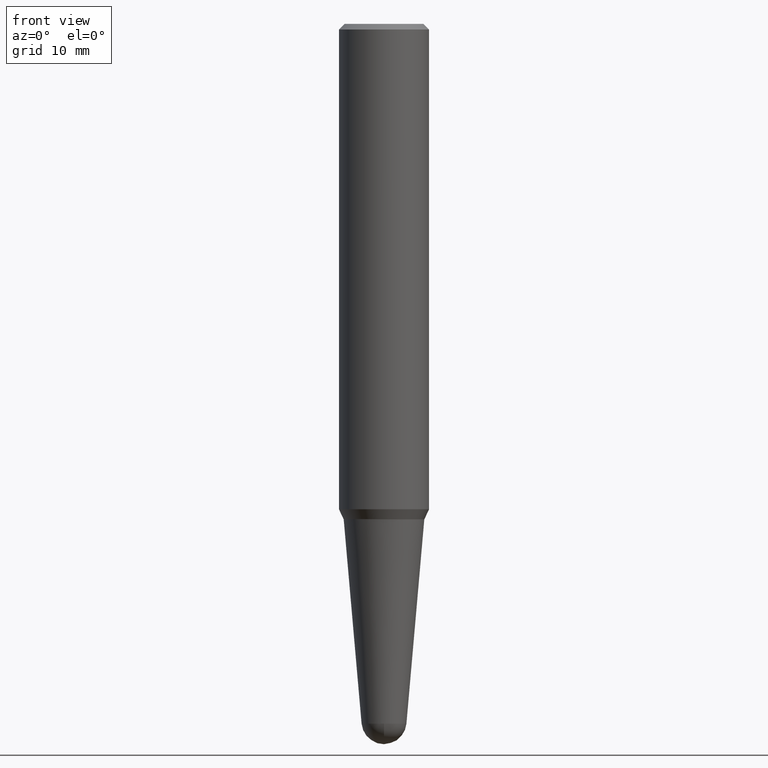
[diagram: clean part render]
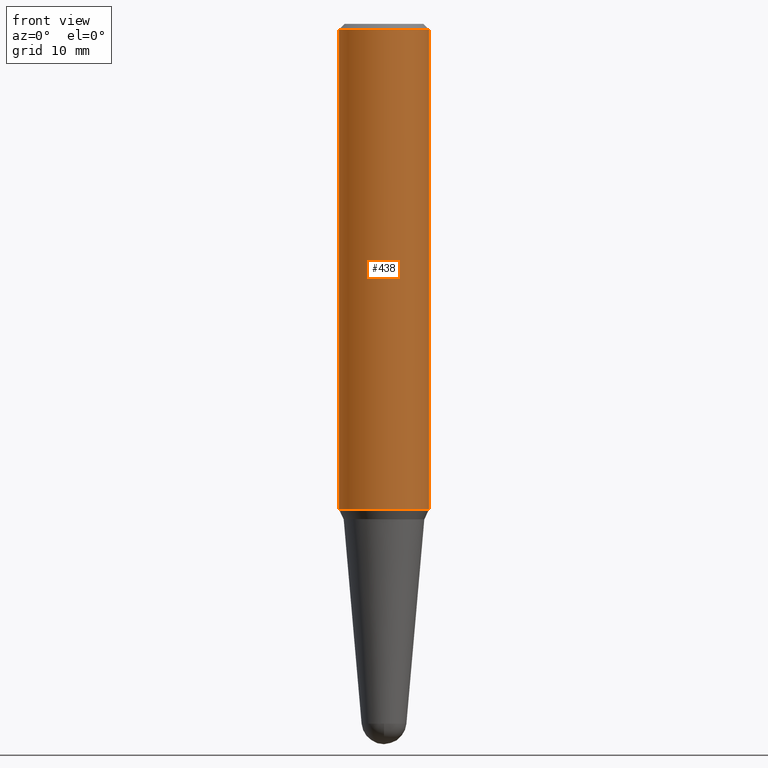
[diagram: same view with one face highlighted and labeled with its STEP entity id]
A machine part, front view. The second image highlights one B-rep face of the part: STEP entity #438.
In plain terms, the highlighted cylindrical surface (partial cylindrical patch) has radius 6.35 mm, axis along (-0, 0, 1).
Its self-contained STEP definition (entity closure, byte-faithful):
#16 = CARTESIAN_POINT ( 'NONE',  ( -0.2500000000000003331, -7.635551372193098540E-15, -2.695677650309841855 ) ) ;
#27 = DIRECTION ( 'NONE',  ( -2.445468806185136877E-29, 3.491481338843145188E-15, 1.000000000000000000 ) ) ;
#43 = CIRCLE ( 'NONE', #105, 0.2500000000000000000 ) ;
#44 = AXIS2_PLACEMENT_3D ( 'NONE', #381, #419, #132 ) ;
#59 = CYLINDRICAL_SURFACE ( 'NONE', #44, 0.2500000000000001665 ) ;
#85 = VERTEX_POINT ( 'NONE', #380 ) ;
#96 = VERTEX_POINT ( 'NONE', #421 ) ;
#105 = AXIS2_PLACEMENT_3D ( 'NONE', #393, #204, #278 ) ;
#132 = DIRECTION ( 'NONE',  ( 1.000000000000000000, -6.982962677686266711E-15, 4.852736867747362844E-29 ) ) ;
#137 = VERTEX_POINT ( 'NONE', #306 ) ;
#139 = EDGE_CURVE ( 'NONE', #319, #85, #184, .T. ) ;
#141 = ORIENTED_EDGE ( 'NONE', *, *, #139, .T. ) ;
#149 = EDGE_CURVE ( 'NONE', #85, #96, #243, .T. ) ;
#150 = CARTESIAN_POINT ( 'NONE',  ( 0.2500000000000001665, -1.745740669421565692E-15, 5.931196827434418047E-16 ) ) ;
#177 = CARTESIAN_POINT ( 'NONE',  ( -0.2500000000000001665, 1.776356839400254015E-15, 5.931196827434174486E-16 ) ) ;
#184 = CIRCLE ( 'NONE', #289, 0.2500000000000003331 ) ;
#187 = ORIENTED_EDGE ( 'NONE', *, *, #454, .F. ) ;
#196 = VECTOR ( 'NONE', #27, 39.37007874015748143 ) ;
#204 = DIRECTION ( 'NONE',  ( -2.445468806185136597E-29, 3.491481338843145583E-15, 1.000000000000000000 ) ) ;
#243 = LINE ( 'NONE', #150, #280 ) ;
#271 = EDGE_LOOP ( 'NONE', ( #396, #141, #461, #187 ) ) ;
#278 = DIRECTION ( 'NONE',  ( 1.000000000000000000, -6.982962677686266711E-15, 0.000000000000000000 ) ) ;
#280 = VECTOR ( 'NONE', #391, 39.37007874015748143 ) ;
#283 = LINE ( 'NONE', #177, #196 ) ;
#285 = DIRECTION ( 'NONE',  ( -2.445468806185136597E-29, 3.491481338843145583E-15, 1.000000000000000000 ) ) ;
#289 = AXIS2_PLACEMENT_3D ( 'NONE', #309, #285, #431 ) ;
#306 = CARTESIAN_POINT ( 'NONE',  ( -0.2500000000000000000, -2.984151662315848194E-15, -0.03125000000000005551 ) ) ;
#309 = CARTESIAN_POINT ( 'NONE',  ( 6.592195605363162692E-29, -9.411908211593352160E-15, -2.695677650309841855 ) ) ;
#319 = VERTEX_POINT ( 'NONE', #16 ) ;
#380 = CARTESIAN_POINT ( 'NONE',  ( 0.2500000000000003331, -1.115764888101492199E-14, -2.695677650309841855 ) ) ;
#381 = CARTESIAN_POINT ( 'NONE',  ( -1.450455682483482035E-44, 2.070866303999251778E-30, 5.931196827434296760E-16 ) ) ;
#391 = DIRECTION ( 'NONE',  ( -2.445468806185136877E-29, 3.491481338843145188E-15, 1.000000000000000000 ) ) ;
#393 = CARTESIAN_POINT ( 'NONE',  ( 7.642090019328565002E-31, -1.091087918388484967E-16, -0.03125000000000005551 ) ) ;
#396 = ORIENTED_EDGE ( 'NONE', *, *, #400, .F. ) ;
#400 = EDGE_CURVE ( 'NONE', #319, #137, #283, .T. ) ;
#419 = DIRECTION ( 'NONE',  ( -2.445468806185136597E-29, 3.491481338843145583E-15, 1.000000000000000000 ) ) ;
#421 = CARTESIAN_POINT ( 'NONE',  ( 0.2500000000000000000, -1.854849461260415384E-15, -0.03125000000000005551 ) ) ;
#431 = DIRECTION ( 'NONE',  ( 1.000000000000000000, -6.982962677686269077E-15, 0.000000000000000000 ) ) ;
#438 = ADVANCED_FACE ( 'NONE', ( #453 ), #59, .T. ) ;
#453 = FACE_OUTER_BOUND ( 'NONE', #271, .T. ) ;
#454 = EDGE_CURVE ( 'NONE', #137, #96, #43, .T. ) ;
#461 = ORIENTED_EDGE ( 'NONE', *, *, #149, .T. ) ;